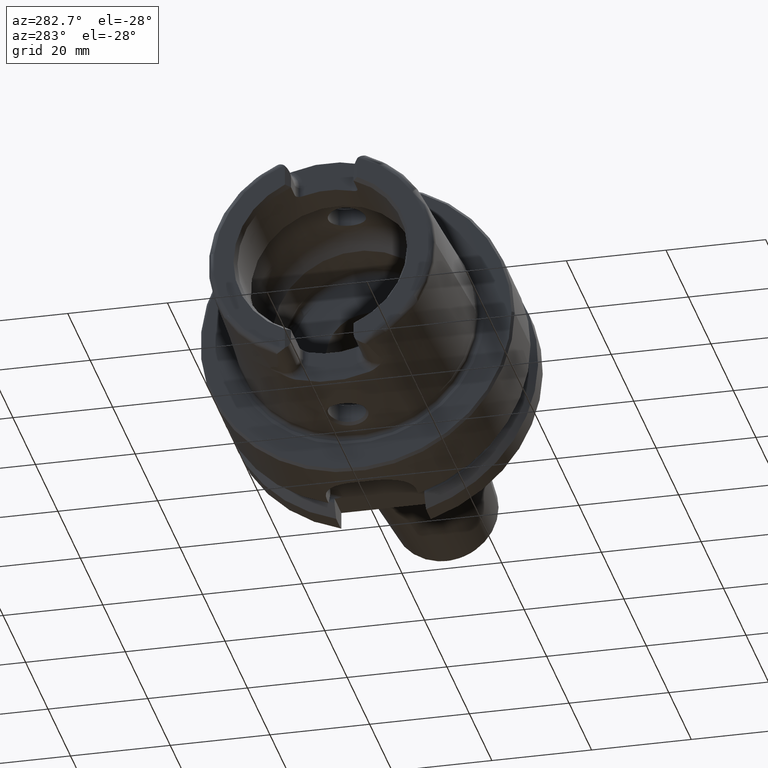
[diagram: clean part render]
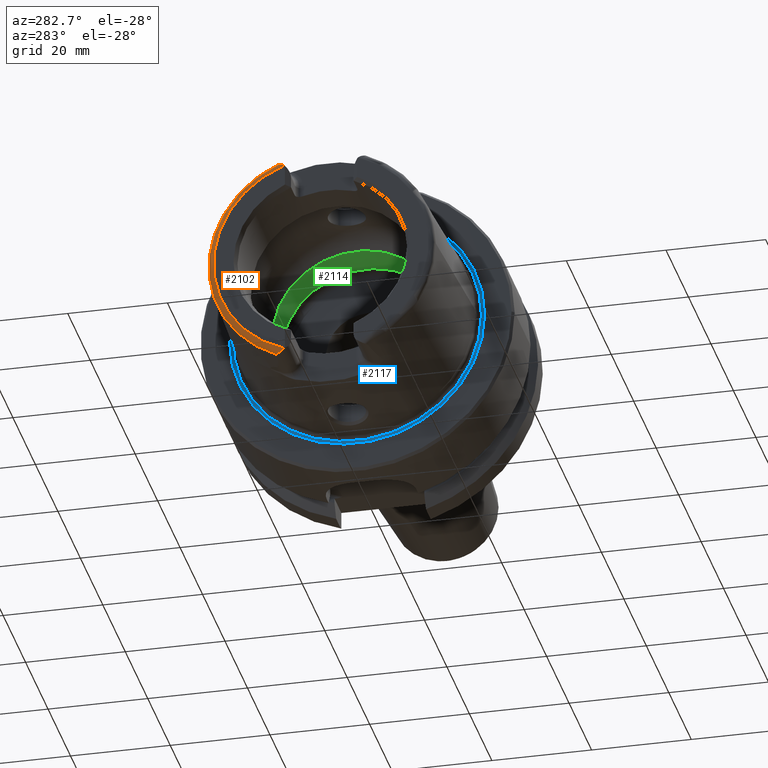
[diagram: same view with three faces highlighted in distinct colors, each labeled with its STEP entity id]
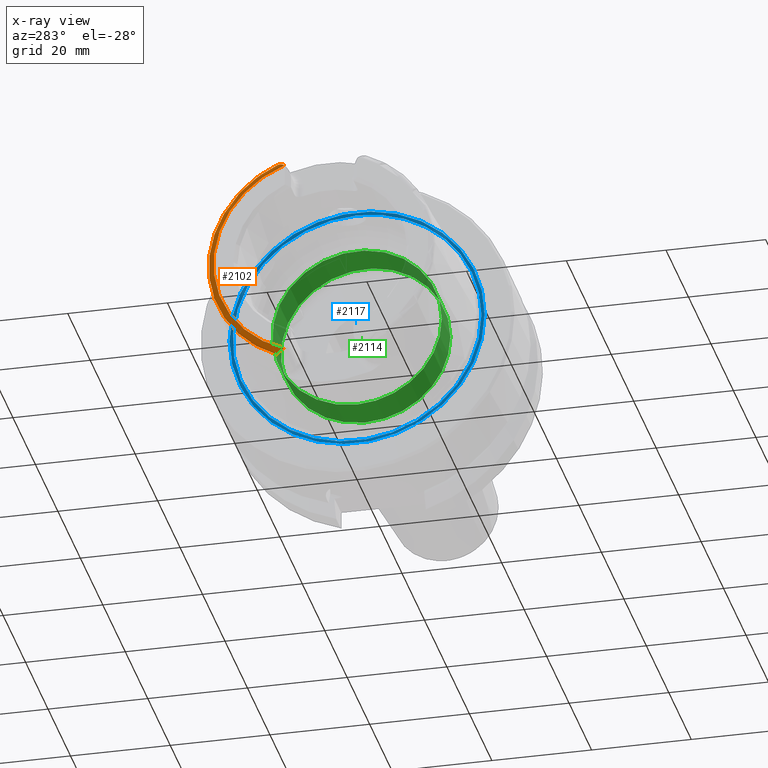
[diagram: x-ray of the same camera — body ghosted, the three highlighted faces saturated]
A machine part, auxiliary view with three faces highlighted in distinct colors.
The next image is the same camera in x-ray (body ghosted, the three faces saturated) — at least one of them is partly hidden behind the body in this view.
Their STEP definitions:

[orange] entity #2102 — the highlighted toroidal blend (fillet) surface has major radius 21.576 mm and minor (blend) radius 1.2 mm.
#33=B_SPLINE_CURVE_WITH_KNOTS('',3,(#3202,#3203,#3204,#3205,#3206,#3207,
#3208,#3209,#3210,#3211,#3212,#3213),.UNSPECIFIED.,.F.,.F.,(4,2,2,2,2,4),
(-0.439971245205478,-0.413787817992068,-0.386870723320619,-0.314205730694733,
-0.242063220501312,-0.191373987051965),.UNSPECIFIED.);
#38=B_SPLINE_CURVE_WITH_KNOTS('',3,(#3303,#3304,#3305,#3306,#3307,#3308,
#3309,#3310,#3311,#3312,#3313,#3314),.UNSPECIFIED.,.F.,.F.,(4,2,2,2,2,4),
(-0.196594494202377,-0.162015792380097,-0.0987584756003746,-0.0492121500493367,
-0.0201918504309682,-3.59409225206588E-5),.UNSPECIFIED.);
#162=TOROIDAL_SURFACE('',#2358,21.5760400159857,1.2);
#314=FACE_OUTER_BOUND('',#444,.T.);
#444=EDGE_LOOP('',(#1893,#1894,#1895,#1896));
#727=CIRCLE('',#2225,22.7745368271334);
#792=CIRCLE('',#2357,21.5760400159857);
#868=VERTEX_POINT('',#3199);
#869=VERTEX_POINT('',#3201);
#888=VERTEX_POINT('',#3293);
#889=VERTEX_POINT('',#3302);
#1092=EDGE_CURVE('',#869,#868,#33,.T.);
#1115=EDGE_CURVE('',#889,#888,#38,.T.);
#1133=EDGE_CURVE('',#869,#888,#727,.T.);
#1312=EDGE_CURVE('',#868,#889,#792,.T.);
#1893=ORIENTED_EDGE('',*,*,#1115,.T.);
#1894=ORIENTED_EDGE('',*,*,#1133,.F.);
#1895=ORIENTED_EDGE('',*,*,#1092,.T.);
#1896=ORIENTED_EDGE('',*,*,#1312,.T.);
#2102=ADVANCED_FACE('',(#314),#162,.T.);
#2225=AXIS2_PLACEMENT_3D('',#3531,#2606,#2607);
#2357=AXIS2_PLACEMENT_3D('',#4433,#2929,#2930);
#2358=AXIS2_PLACEMENT_3D('',#4434,#2931,#2932);
#2606=DIRECTION('center_axis',(1.,0.,0.));
#2607=DIRECTION('ref_axis',(0.,0.,-1.));
#2929=DIRECTION('center_axis',(1.,0.,0.));
#2930=DIRECTION('ref_axis',(0.,0.,-1.));
#2931=DIRECTION('center_axis',(1.,0.,0.));
#2932=DIRECTION('ref_axis',(0.,0.,-1.));
#3199=CARTESIAN_POINT('',(-32.,7.39118810947246,-20.2705658801576));
#3201=CARTESIAN_POINT('',(-30.8600449304182,9.1175788960984,-20.8698175067219));
#3202=CARTESIAN_POINT('Ctrl Pts',(-30.8600449304182,9.11757889609839,-20.8698175067219));
#3203=CARTESIAN_POINT('Ctrl Pts',(-30.9283482575805,9.10924589065498,-20.869723693404));
#3204=CARTESIAN_POINT('Ctrl Pts',(-30.993271833442,9.08711423752726,-20.869481166787));
#3205=CARTESIAN_POINT('Ctrl Pts',(-31.1175295394099,9.02410248673809,-20.8674243938042));
#3206=CARTESIAN_POINT('Ctrl Pts',(-31.1766323882079,8.98273168347476,-20.8654949507798));
#3207=CARTESIAN_POINT('Ctrl Pts',(-31.3771588963276,8.81568608992481,-20.853140478981));
#3208=CARTESIAN_POINT('Ctrl Pts',(-31.5206715121349,8.63879728066883,-20.8319176028095));
#3209=CARTESIAN_POINT('Ctrl Pts',(-31.7691415784724,8.23645855855542,-20.7290954164696));
#3210=CARTESIAN_POINT('Ctrl Pts',(-31.8687101576321,8.02133155327414,-20.6499424381211));
#3211=CARTESIAN_POINT('Ctrl Pts',(-31.9745830679216,7.66828298917771,-20.4650680358065));
#3212=CARTESIAN_POINT('Ctrl Pts',(-32.,7.52538170482901,-20.3740583042087));
#3213=CARTESIAN_POINT('Ctrl Pts',(-32.,7.39118810947247,-20.2705658801576));
#3293=CARTESIAN_POINT('',(-30.8600449304182,9.1175788960984,20.8698175067219));
#3302=CARTESIAN_POINT('',(-32.,7.39118810947246,20.2705658801576));
#3303=CARTESIAN_POINT('Ctrl Pts',(-32.,7.39118810947247,20.2705658801576));
#3304=CARTESIAN_POINT('Ctrl Pts',(-32.,7.5108721598535,20.3628682919178));
#3305=CARTESIAN_POINT('Ctrl Pts',(-31.9797330717779,7.63776168900947,20.4454948383081));
#3306=CARTESIAN_POINT('Ctrl Pts',(-31.8791506793963,8.00524977105305,20.646558514632));
#3307=CARTESIAN_POINT('Ctrl Pts',(-31.765597681806,8.24658605272637,20.7334672105939));
#3308=CARTESIAN_POINT('Ctrl Pts',(-31.5253369252513,8.62735746584638,20.8274140198604));
#3309=CARTESIAN_POINT('Ctrl Pts',(-31.4073954734027,8.77570244905025,20.847801807847));
#3310=CARTESIAN_POINT('Ctrl Pts',(-31.2163518404642,8.95387229883953,20.8640739602076));
#3311=CARTESIAN_POINT('Ctrl Pts',(-31.1366672867121,9.0150934584885,20.867161983441));
#3312=CARTESIAN_POINT('Ctrl Pts',(-30.990207154745,9.08815496121785,20.8694917701067));
#3313=CARTESIAN_POINT('Ctrl Pts',(-30.9267310903117,9.10944318505063,20.8697259145524));
#3314=CARTESIAN_POINT('Ctrl Pts',(-30.8600449304182,9.11757889609838,20.8698175067219));
#3531=CARTESIAN_POINT('Origin',(-30.8600449304182,0.,0.));
#4433=CARTESIAN_POINT('Origin',(-32.,0.,0.));
#4434=CARTESIAN_POINT('Origin',(-30.8,0.,0.));

[blue] entity #2117 — the highlighted conical surface has half-angle 82 deg.
#329=FACE_OUTER_BOUND('',#462,.T.);
#462=EDGE_LOOP('',(#1959,#1960,#1961,#1962,#1963));
#575=LINE('',#4486,#685);
#685=VECTOR('',#3003,25.2598393130041);
#809=CIRCLE('',#2390,24.9317693424915);
#810=CIRCLE('',#2391,24.9317693424915);
#811=CIRCLE('',#2392,25.5879092835167);
#1018=VERTEX_POINT('',#4481);
#1019=VERTEX_POINT('',#4482);
#1020=VERTEX_POINT('',#4485);
#1333=EDGE_CURVE('',#1018,#1019,#809,.T.);
#1334=EDGE_CURVE('',#1019,#1018,#810,.T.);
#1335=EDGE_CURVE('',#1018,#1020,#575,.T.);
#1336=EDGE_CURVE('',#1020,#1020,#811,.T.);
#1959=ORIENTED_EDGE('',*,*,#1333,.T.);
#1960=ORIENTED_EDGE('',*,*,#1334,.T.);
#1961=ORIENTED_EDGE('',*,*,#1335,.T.);
#1962=ORIENTED_EDGE('',*,*,#1336,.F.);
#1963=ORIENTED_EDGE('',*,*,#1335,.F.);
#1999=CONICAL_SURFACE('',#2389,25.2598393130041,1.43116998663535);
#2117=ADVANCED_FACE('',(#329),#1999,.F.);
#2389=AXIS2_PLACEMENT_3D('',#4480,#2997,#2998);
#2390=AXIS2_PLACEMENT_3D('',#4483,#2999,#3000);
#2391=AXIS2_PLACEMENT_3D('',#4484,#3001,#3002);
#2392=AXIS2_PLACEMENT_3D('',#4487,#3004,#3005);
#2997=DIRECTION('center_axis',(-1.,0.,0.));
#2998=DIRECTION('ref_axis',(0.,1.,0.));
#2999=DIRECTION('center_axis',(1.,0.,0.));
#3000=DIRECTION('ref_axis',(0.,0.,-1.));
#3001=DIRECTION('center_axis',(1.,0.,0.));
#3002=DIRECTION('ref_axis',(0.,0.,-1.));
#3003=DIRECTION('',(-0.139173100960067,-0.99026806874157,-1.2127286206822E-16));
#3004=DIRECTION('center_axis',(1.,0.,0.));
#3005=DIRECTION('ref_axis',(0.,0.,-1.));
#4480=CARTESIAN_POINT('Origin',(0.0461072274966284,0.,0.));
#4481=CARTESIAN_POINT('',(0.092214454993257,-24.9317693424915,-3.05326115223623E-15));
#4482=CARTESIAN_POINT('',(0.0922144549932569,-3.05326115223623E-15,24.9317693424915));
#4483=CARTESIAN_POINT('Origin',(0.0922144549932569,0.,0.));
#4484=CARTESIAN_POINT('Origin',(0.0922144549932569,0.,0.));
#4485=CARTESIAN_POINT('',(-3.55618312575245E-16,-25.5879092835167,-3.13361512009315E-15));
#4486=CARTESIAN_POINT('',(0.0461072274966284,-25.2598393130041,-3.09343813616469E-15));
#4487=CARTESIAN_POINT('Origin',(0.,0.,0.));

[green] entity #2114 — the highlighted cylindrical surface (bore or boss wall) has radius 17 mm, axis along (-1, 0, 0).
#212=CYLINDRICAL_SURFACE('',#2383,17.);
#326=FACE_OUTER_BOUND('',#459,.T.);
#459=EDGE_LOOP('',(#1941,#1942,#1943,#1944,#1945,#1946));
#573=LINE('',#4471,#683);
#683=VECTOR('',#2985,17.);
#735=CIRCLE('',#2237,17.);
#736=CIRCLE('',#2238,17.);
#804=CIRCLE('',#2381,17.);
#805=CIRCLE('',#2382,17.);
#916=VERTEX_POINT('',#3825);
#917=VERTEX_POINT('',#3826);
#1014=VERTEX_POINT('',#4465);
#1015=VERTEX_POINT('',#4467);
#1156=EDGE_CURVE('',#916,#917,#735,.T.);
#1157=EDGE_CURVE('',#917,#916,#736,.T.);
#1326=EDGE_CURVE('',#1014,#1015,#804,.T.);
#1327=EDGE_CURVE('',#1015,#1014,#805,.T.);
#1328=EDGE_CURVE('',#1015,#916,#573,.T.);
#1941=ORIENTED_EDGE('',*,*,#1327,.F.);
#1942=ORIENTED_EDGE('',*,*,#1328,.T.);
#1943=ORIENTED_EDGE('',*,*,#1156,.T.);
#1944=ORIENTED_EDGE('',*,*,#1157,.T.);
#1945=ORIENTED_EDGE('',*,*,#1328,.F.);
#1946=ORIENTED_EDGE('',*,*,#1326,.F.);
#2114=ADVANCED_FACE('',(#326),#212,.F.);
#2237=AXIS2_PLACEMENT_3D('',#3827,#2634,#2635);
#2238=AXIS2_PLACEMENT_3D('',#3828,#2636,#2637);
#2381=AXIS2_PLACEMENT_3D('',#4468,#2979,#2980);
#2382=AXIS2_PLACEMENT_3D('',#4469,#2981,#2982);
#2383=AXIS2_PLACEMENT_3D('',#4470,#2983,#2984);
#2634=DIRECTION('center_axis',(-1.,0.,0.));
#2635=DIRECTION('ref_axis',(0.,0.,1.));
#2636=DIRECTION('center_axis',(-1.,0.,0.));
#2637=DIRECTION('ref_axis',(0.,0.,1.));
#2979=DIRECTION('center_axis',(-1.,0.,0.));
#2980=DIRECTION('ref_axis',(0.,0.,1.));
#2981=DIRECTION('center_axis',(-1.,0.,0.));
#2982=DIRECTION('ref_axis',(0.,0.,1.));
#2983=DIRECTION('center_axis',(-1.,0.,0.));
#2984=DIRECTION('ref_axis',(0.,1.,0.));
#2985=DIRECTION('',(-1.,0.,0.));
#3825=CARTESIAN_POINT('',(0.,-17.,2.0818995585505E-15));
#3826=CARTESIAN_POINT('',(0.,-2.0818995585505E-15,-17.));
#3827=CARTESIAN_POINT('Origin',(0.,0.,0.));
#3828=CARTESIAN_POINT('Origin',(0.,0.,0.));
#4465=CARTESIAN_POINT('',(7.67084380241115,-2.0818995585505E-15,-17.));
#4467=CARTESIAN_POINT('',(7.67084380241115,-17.,2.0818995585505E-15));
#4468=CARTESIAN_POINT('Origin',(7.67084380241115,0.,0.));
#4469=CARTESIAN_POINT('Origin',(7.67084380241115,0.,0.));
#4470=CARTESIAN_POINT('Origin',(3.83542190120557,0.,0.));
#4471=CARTESIAN_POINT('',(3.83542190120557,-17.,2.0818995585505E-15));